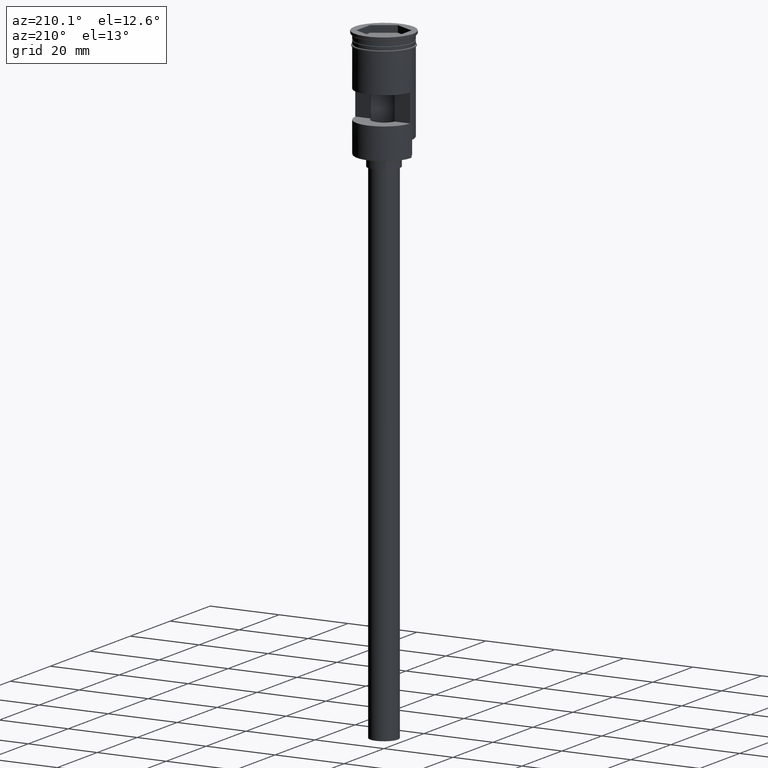
[diagram: clean part render]
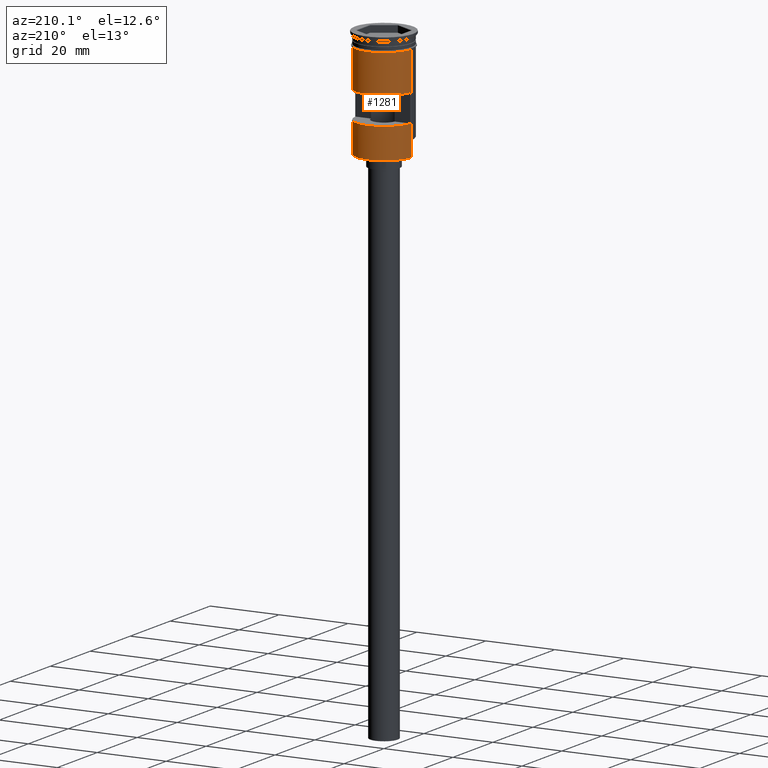
[diagram: same view with one face highlighted and labeled with its STEP entity id]
A machine part, auxiliary view. The second image highlights one B-rep face of the part: STEP entity #1281.
In plain terms, the highlighted cylindrical surface (edge-blend (fillet) strip) has radius 8 mm, axis along (-0, -0, 1).
Its self-contained STEP definition (entity closure, byte-faithful):
#12 = CARTESIAN_POINT ( 'NONE',  ( 7.999999999999992895, 9.797174393178817769E-16, -32.00000000000000000 ) ) ;
#46 = CARTESIAN_POINT ( 'NONE',  ( 7.999999999999996447, 0.000000000000000000, 0.000000000000000000 ) ) ;
#50 = ORIENTED_EDGE ( 'NONE', *, *, #1449, .F. ) ;
#53 = CARTESIAN_POINT ( 'NONE',  ( 0.000000000000000000, 0.000000000000000000, -31.79999999999997939 ) ) ;
#65 = VECTOR ( 'NONE', #1003, 1000.000000000000000 ) ;
#67 = DIRECTION ( 'NONE',  ( -0.000000000000000000, -0.000000000000000000, 1.000000000000000000 ) ) ;
#72 = CARTESIAN_POINT ( 'NONE',  ( 0.000000000000000000, 0.000000000000000000, -15.00000000000000000 ) ) ;
#74 = DIRECTION ( 'NONE',  ( -1.000000000000000000, 0.000000000000000000, 0.000000000000000000 ) ) ;
#101 = EDGE_CURVE ( 'NONE', #1563, #647, #1085, .T. ) ;
#146 = VERTEX_POINT ( 'NONE', #1470 ) ;
#171 = AXIS2_PLACEMENT_3D ( 'NONE', #72, #1074, #810 ) ;
#176 = DIRECTION ( 'NONE',  ( 1.000000000000000000, 0.000000000000000000, 0.000000000000000000 ) ) ;
#201 = CARTESIAN_POINT ( 'NONE',  ( -7.977468270071648604, 0.6000000000000000888, -15.00000000000000000 ) ) ;
#219 = ORIENTED_EDGE ( 'NONE', *, *, #101, .T. ) ;
#246 = ORIENTED_EDGE ( 'NONE', *, *, #804, .T. ) ;
#252 = LINE ( 'NONE', #12, #65 ) ;
#253 = EDGE_CURVE ( 'NONE', #1233, #506, #1423, .T. ) ;
#256 = EDGE_CURVE ( 'NONE', #146, #803, #765, .T. ) ;
#269 = ORIENTED_EDGE ( 'NONE', *, *, #784, .F. ) ;
#281 = DIRECTION ( 'NONE',  ( -0.000000000000000000, -0.000000000000000000, 1.000000000000000000 ) ) ;
#306 = EDGE_CURVE ( 'NONE', #881, #1399, #707, .T. ) ;
#349 = CARTESIAN_POINT ( 'NONE',  ( -7.977468270071648604, 0.6000000000000000888, 0.000000000000000000 ) ) ;
#361 = ORIENTED_EDGE ( 'NONE', *, *, #1035, .F. ) ;
#367 = VECTOR ( 'NONE', #1446, 1000.000000000000000 ) ;
#385 = ORIENTED_EDGE ( 'NONE', *, *, #461, .F. ) ;
#387 = ORIENTED_EDGE ( 'NONE', *, *, #256, .T. ) ;
#428 = DIRECTION ( 'NONE',  ( -0.000000000000000000, -0.000000000000000000, 1.000000000000000000 ) ) ;
#453 = AXIS2_PLACEMENT_3D ( 'NONE', #1153, #281, #176 ) ;
#461 = EDGE_CURVE ( 'NONE', #1399, #1514, #1511, .T. ) ;
#506 = VERTEX_POINT ( 'NONE', #1091 ) ;
#529 = VECTOR ( 'NONE', #1174, 1000.000000000000000 ) ;
#626 = CARTESIAN_POINT ( 'NONE',  ( -7.999999999999992895, 0.000000000000000000, -27.29999999999996518 ) ) ;
#635 = CIRCLE ( 'NONE', #1535, 8.000000000000000000 ) ;
#637 = VERTEX_POINT ( 'NONE', #1456 ) ;
#647 = VERTEX_POINT ( 'NONE', #1339 ) ;
#664 = VECTOR ( 'NONE', #920, 1000.000000000000000 ) ;
#669 = CARTESIAN_POINT ( 'NONE',  ( -7.977468270071648604, 0.6000000000000000888, -23.00000000000000000 ) ) ;
#683 = CARTESIAN_POINT ( 'NONE',  ( -7.999999999999992895, 0.000000000000000000, -31.79999999999997939 ) ) ;
#697 = DIRECTION ( 'NONE',  ( -1.000000000000000000, 0.000000000000000000, 0.000000000000000000 ) ) ;
#698 = CIRCLE ( 'NONE', #1116, 7.999999999999996447 ) ;
#707 = LINE ( 'NONE', #349, #1462 ) ;
#765 = CIRCLE ( 'NONE', #1536, 7.999999999999996447 ) ;
#770 = CYLINDRICAL_SURFACE ( 'NONE', #453, 7.999999999999996447 ) ;
#773 = CARTESIAN_POINT ( 'NONE',  ( 7.999999999999996447, 9.797174393178821713E-16, -27.29999999999996518 ) ) ;
#781 = FACE_BOUND ( 'NONE', #1007, .T. ) ;
#784 = EDGE_CURVE ( 'NONE', #146, #1233, #252, .T. ) ;
#786 = ORIENTED_EDGE ( 'NONE', *, *, #306, .F. ) ;
#803 = VERTEX_POINT ( 'NONE', #683 ) ;
#804 = EDGE_CURVE ( 'NONE', #803, #1563, #1401, .T. ) ;
#810 = DIRECTION ( 'NONE',  ( 0.000000000000000000, -1.000000000000000000, -2.168404344971009854E-16 ) ) ;
#836 = CARTESIAN_POINT ( 'NONE',  ( 0.000000000000000000, 0.000000000000000000, -23.00000000000000000 ) ) ;
#881 = VERTEX_POINT ( 'NONE', #669 ) ;
#920 = DIRECTION ( 'NONE',  ( -0.000000000000000000, -0.000000000000000000, 1.000000000000000000 ) ) ;
#921 = FACE_OUTER_BOUND ( 'NONE', #1253, .T. ) ;
#924 = ORIENTED_EDGE ( 'NONE', *, *, #253, .F. ) ;
#954 = LINE ( 'NONE', #1314, #367 ) ;
#1003 = DIRECTION ( 'NONE',  ( -0.000000000000000000, -0.000000000000000000, 1.000000000000000000 ) ) ;
#1007 = EDGE_LOOP ( 'NONE', ( #50, #385, #786, #361 ) ) ;
#1035 = EDGE_CURVE ( 'NONE', #637, #881, #698, .T. ) ;
#1074 = DIRECTION ( 'NONE',  ( -0.000000000000000000, 2.344220913482172642E-16, -1.000000000000000000 ) ) ;
#1084 = DIRECTION ( 'NONE',  ( -0.000000000000000000, -0.000000000000000000, 1.000000000000000000 ) ) ;
#1085 = LINE ( 'NONE', #1307, #664 ) ;
#1091 = CARTESIAN_POINT ( 'NONE',  ( 8.000000000000000000, 0.000000000000000000, -3.999999999999997335 ) ) ;
#1116 = AXIS2_PLACEMENT_3D ( 'NONE', #836, #1545, #697 ) ;
#1129 = CARTESIAN_POINT ( 'NONE',  ( 7.977468270071646828, 0.6000000000000000888, -15.00000000000000000 ) ) ;
#1150 = CARTESIAN_POINT ( 'NONE',  ( -7.999999999999992895, 0.000000000000000000, -32.00000000000000000 ) ) ;
#1153 = CARTESIAN_POINT ( 'NONE',  ( 0.000000000000000000, 0.000000000000000000, 0.000000000000000000 ) ) ;
#1174 = DIRECTION ( 'NONE',  ( -0.000000000000000000, -0.000000000000000000, 1.000000000000000000 ) ) ;
#1187 = CARTESIAN_POINT ( 'NONE',  ( 0.000000000000000000, 0.000000000000000000, -3.999999999999997335 ) ) ;
#1233 = VERTEX_POINT ( 'NONE', #773 ) ;
#1253 = EDGE_LOOP ( 'NONE', ( #246, #219, #1538, #924, #269, #387 ) ) ;
#1281 = ADVANCED_FACE ( 'NONE', ( #781, #921 ), #770, .T. ) ;
#1305 = DIRECTION ( 'NONE',  ( 0.000000000000000000, 0.000000000000000000, 1.000000000000000000 ) ) ;
#1306 = VECTOR ( 'NONE', #428, 1000.000000000000000 ) ;
#1307 = CARTESIAN_POINT ( 'NONE',  ( -7.999999999999996447, 9.797174393178821713E-16, 0.000000000000000000 ) ) ;
#1314 = CARTESIAN_POINT ( 'NONE',  ( 7.977468270071648604, 0.6000000000000000888, 0.000000000000000000 ) ) ;
#1339 = CARTESIAN_POINT ( 'NONE',  ( -8.000000000000000000, 9.797174393178825657E-16, -3.999999999999997335 ) ) ;
#1399 = VERTEX_POINT ( 'NONE', #201 ) ;
#1401 = LINE ( 'NONE', #1150, #1306 ) ;
#1423 = LINE ( 'NONE', #46, #529 ) ;
#1434 = DIRECTION ( 'NONE',  ( 1.000000000000000000, 0.000000000000000000, 0.000000000000000000 ) ) ;
#1446 = DIRECTION ( 'NONE',  ( 0.000000000000000000, 0.000000000000000000, -1.000000000000000000 ) ) ;
#1447 = EDGE_CURVE ( 'NONE', #506, #647, #635, .T. ) ;
#1449 = EDGE_CURVE ( 'NONE', #1514, #637, #954, .T. ) ;
#1456 = CARTESIAN_POINT ( 'NONE',  ( 7.977468270071646828, 0.6000000000000000888, -23.00000000000000000 ) ) ;
#1462 = VECTOR ( 'NONE', #1084, 1000.000000000000000 ) ;
#1470 = CARTESIAN_POINT ( 'NONE',  ( 7.999999999999992895, 9.797174393178817769E-16, -31.79999999999997939 ) ) ;
#1511 = CIRCLE ( 'NONE', #171, 7.999999999999996447 ) ;
#1514 = VERTEX_POINT ( 'NONE', #1129 ) ;
#1535 = AXIS2_PLACEMENT_3D ( 'NONE', #1187, #67, #1434 ) ;
#1536 = AXIS2_PLACEMENT_3D ( 'NONE', #53, #1305, #74 ) ;
#1538 = ORIENTED_EDGE ( 'NONE', *, *, #1447, .F. ) ;
#1545 = DIRECTION ( 'NONE',  ( 0.000000000000000000, 0.000000000000000000, 1.000000000000000000 ) ) ;
#1563 = VERTEX_POINT ( 'NONE', #626 ) ;